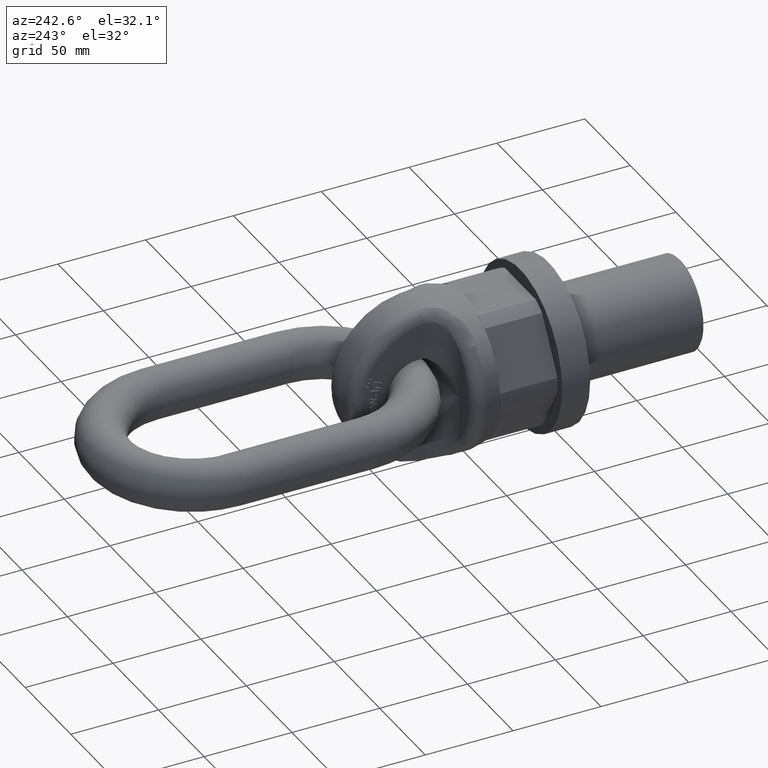
[diagram: clean part render]
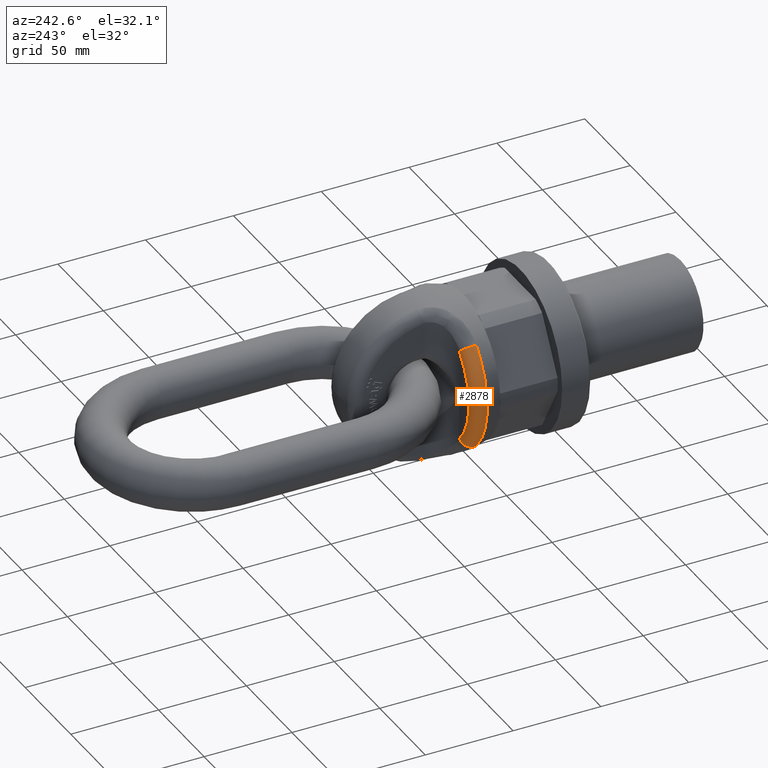
[diagram: same view with one face highlighted and labeled with its STEP entity id]
A machine part, auxiliary view. The second image highlights one B-rep face of the part: STEP entity #2878.
In plain terms, the highlighted toroidal blend (fillet) surface has major radius 37.4698 mm and minor (blend) radius 6 mm.
Its self-contained STEP definition (entity closure, byte-faithful):
#1802=TOROIDAL_SURFACE('',#5796,37.4698087327789,6.);
#2014=FACE_OUTER_BOUND('',#3337,.T.);
#2878=ADVANCED_FACE('',(#2014),#1802,.T.);
#3337=EDGE_LOOP('',(#4513,#4514,#4515,#4516));
#4513=ORIENTED_EDGE('',*,*,#5527,.T.);
#4514=ORIENTED_EDGE('',*,*,#5351,.F.);
#4515=ORIENTED_EDGE('',*,*,#5529,.F.);
#4516=ORIENTED_EDGE('',*,*,#5080,.F.);
#4662=VERTEX_POINT('',#7064);
#4665=VERTEX_POINT('',#7086);
#4839=VERTEX_POINT('',#8568);
#4841=VERTEX_POINT('',#8600);
#5080=EDGE_CURVE('',#4665,#4662,#5567,.T.);
#5351=EDGE_CURVE('',#4839,#4841,#5587,.T.);
#5527=EDGE_CURVE('',#4665,#4841,#5593,.T.);
#5529=EDGE_CURVE('',#4662,#4839,#5595,.T.);
#5567=CIRCLE('',#5660,43.2877245192613);
#5587=CIRCLE('',#5737,37.4698087327789);
#5593=CIRCLE('',#5792,6.);
#5595=CIRCLE('',#5795,6.);
#5660=AXIS2_PLACEMENT_3D('',#7087,#5983,#5984);
#5737=AXIS2_PLACEMENT_3D('',#8615,#6299,#6300);
#5792=AXIS2_PLACEMENT_3D('',#9602,#6535,#6536);
#5795=AXIS2_PLACEMENT_3D('',#9623,#6541,#6542);
#5796=AXIS2_PLACEMENT_3D('',#9624,#6543,#6544);
#5983=DIRECTION('',(0.,-1.,0.));
#5984=DIRECTION('',(-2.34291072916505E-15,0.,1.));
#6299=DIRECTION('',(0.,1.,0.));
#6300=DIRECTION('',(2.34291072916505E-15,0.,-1.));
#6535=DIRECTION('',(-0.693371662747062,-4.00936033648135E-16,-0.720580139401145));
#6536=DIRECTION('',(-0.720580139401145,0.,0.693371662747063));
#6541=DIRECTION('',(0.693371662747066,4.00936033648135E-16,-0.720580139401142));
#6542=DIRECTION('',(-0.720580139401142,0.,-0.693371662747065));
#6543=DIRECTION('',(0.,1.,0.));
#6544=DIRECTION('',(2.34291072916505E-15,0.,-1.));
#7064=CARTESIAN_POINT('',(-31.1922745684475,57.5330794495273,-30.0144815264571));
#7086=CARTESIAN_POINT('',(-31.1922745684476,57.5330794495273,30.014481526457));
#7087=CARTESIAN_POINT('',(0.,57.5330794495273,0.));
#8568=CARTESIAN_POINT('',(-26.9999999999999,65.,-25.9805035838614));
#8600=CARTESIAN_POINT('',(-27.0000000000001,65.,25.9805035838613));
#8615=CARTESIAN_POINT('',(0.,65.,0.));
#9602=CARTESIAN_POINT('',(-27.0000000000001,59.,25.9805035838613));
#9623=CARTESIAN_POINT('',(-26.9999999999999,59.,-25.9805035838614));
#9624=CARTESIAN_POINT('',(0.,59.,0.));